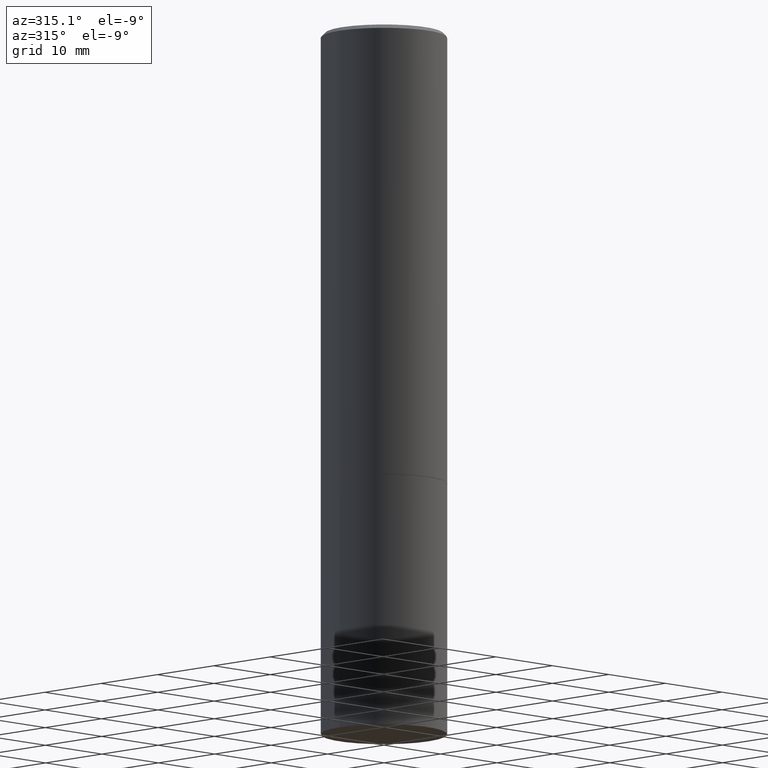
[diagram: clean part render]
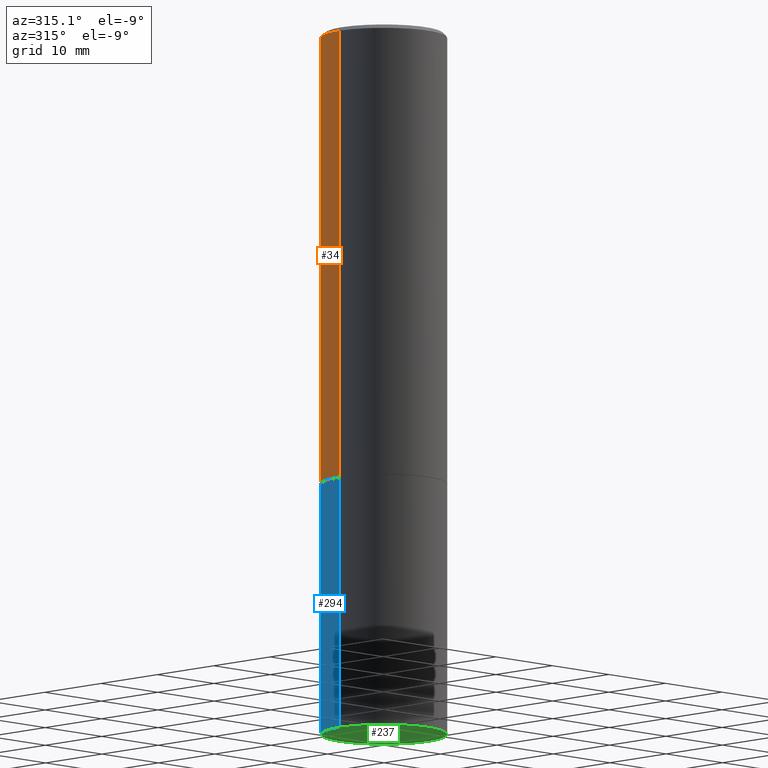
[diagram: same view with three faces highlighted in distinct colors, each labeled with its STEP entity id]
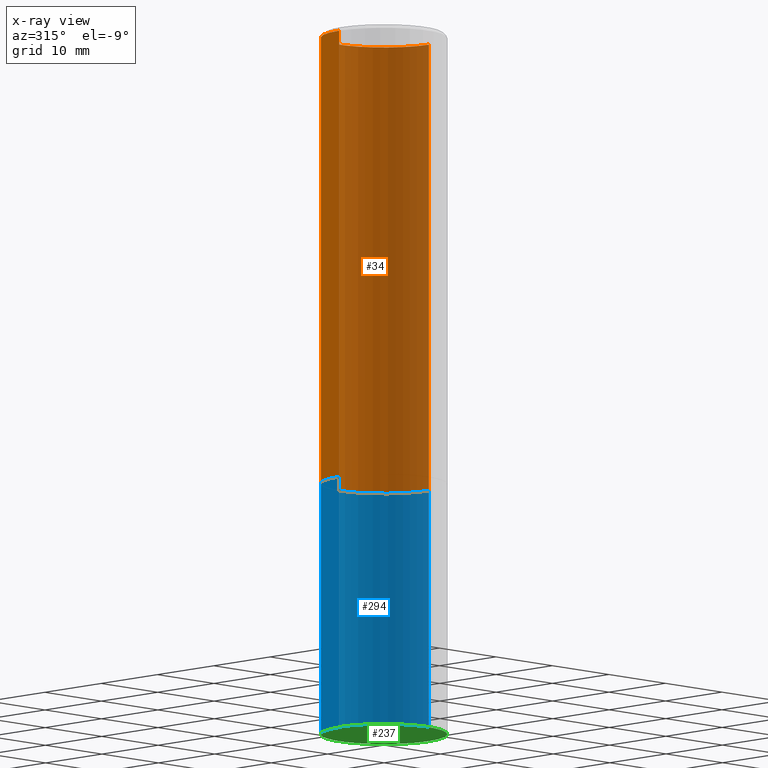
[diagram: x-ray of the same camera — body ghosted, the three highlighted faces saturated]
A machine part, auxiliary view with three faces highlighted in distinct colors.
The next image is the same camera in x-ray (body ghosted, the three faces saturated) — at least one of them is partly hidden behind the body in this view.
Their STEP definitions:

[orange] entity #34 — the highlighted cylindrical surface (partial cylindrical patch) has radius 7.9375 mm, axis along (-0, 0, 1).
#8 = EDGE_CURVE ( 'NONE', #302, #254, #138, .T. ) ;
#12 = ORIENTED_EDGE ( 'NONE', *, *, #36, .T. ) ;
#27 = EDGE_CURVE ( 'NONE', #254, #223, #178, .T. ) ;
#34 = ADVANCED_FACE ( 'NONE', ( #306 ), #339, .T. ) ;
#36 = EDGE_CURVE ( 'NONE', #286, #223, #86, .T. ) ;
#44 = ORIENTED_EDGE ( 'NONE', *, *, #274, .T. ) ;
#78 = CARTESIAN_POINT ( 'NONE',  ( -0.3125000000000000000, -1.740639529667233725E-15, -2.248999999999999666 ) ) ;
#86 = LINE ( 'NONE', #361, #300 ) ;
#88 = CARTESIAN_POINT ( 'NONE',  ( 0.3124999999999998890, -2.182175836776957558E-15, 1.523805242436229235E-29 ) ) ;
#110 = DIRECTION ( 'NONE',  ( 1.000000000000000000, -6.982962677686266711E-15, 4.876176775795935232E-29 ) ) ;
#112 = CARTESIAN_POINT ( 'NONE',  ( 0.3125000000000000000, -1.003451736783519063E-14, -2.248999999999999666 ) ) ;
#123 = CARTESIAN_POINT ( 'NONE',  ( 5.499859345110371740E-29, -7.852341531058233864E-15, -2.248999999999999666 ) ) ;
#138 = LINE ( 'NONE', #88, #252 ) ;
#165 = CARTESIAN_POINT ( 'NONE',  ( 4.890937612370292426E-31, -6.982962677686317493E-17, -0.02000000000000007674 ) ) ;
#171 = DIRECTION ( 'NONE',  ( -2.445468806185136877E-29, 3.491481338843145188E-15, 1.000000000000000000 ) ) ;
#175 = CIRCLE ( 'NONE', #309, 0.3125000000000000000 ) ;
#178 = CIRCLE ( 'NONE', #232, 0.3124999999999997224 ) ;
#183 = AXIS2_PLACEMENT_3D ( 'NONE', #364, #357, #110 ) ;
#188 = EDGE_LOOP ( 'NONE', ( #44, #12, #276, #349 ) ) ;
#197 = DIRECTION ( 'NONE',  ( 1.000000000000000000, -6.982962677686266711E-15, 0.000000000000000000 ) ) ;
#223 = VERTEX_POINT ( 'NONE', #270 ) ;
#232 = AXIS2_PLACEMENT_3D ( 'NONE', #165, #310, #197 ) ;
#243 = DIRECTION ( 'NONE',  ( -2.445468806185136597E-29, 3.491481338843145583E-15, 1.000000000000000000 ) ) ;
#252 = VECTOR ( 'NONE', #281, 39.37007874015748143 ) ;
#254 = VERTEX_POINT ( 'NONE', #343 ) ;
#270 = CARTESIAN_POINT ( 'NONE',  ( -0.3124999999999997224, 2.112346210000093471E-15, -0.02000000000000007674 ) ) ;
#273 = DIRECTION ( 'NONE',  ( 1.000000000000000000, -6.982962677686265133E-15, 0.000000000000000000 ) ) ;
#274 = EDGE_CURVE ( 'NONE', #302, #286, #175, .T. ) ;
#276 = ORIENTED_EDGE ( 'NONE', *, *, #27, .F. ) ;
#281 = DIRECTION ( 'NONE',  ( -2.445468806185136877E-29, 3.491481338843145188E-15, 1.000000000000000000 ) ) ;
#286 = VERTEX_POINT ( 'NONE', #78 ) ;
#300 = VECTOR ( 'NONE', #171, 39.37007874015748143 ) ;
#302 = VERTEX_POINT ( 'NONE', #112 ) ;
#306 = FACE_OUTER_BOUND ( 'NONE', #188, .T. ) ;
#309 = AXIS2_PLACEMENT_3D ( 'NONE', #123, #243, #273 ) ;
#310 = DIRECTION ( 'NONE',  ( -2.445468806185136597E-29, 3.491481338843145583E-15, 1.000000000000000000 ) ) ;
#339 = CYLINDRICAL_SURFACE ( 'NONE', #183, 0.3124999999999998890 ) ;
#343 = CARTESIAN_POINT ( 'NONE',  ( 0.3124999999999997224, -2.213735251080464939E-15, -0.02000000000000007674 ) ) ;
#349 = ORIENTED_EDGE ( 'NONE', *, *, #8, .F. ) ;
#357 = DIRECTION ( 'NONE',  ( -2.445468806185136597E-29, 3.491481338843145583E-15, 1.000000000000000000 ) ) ;
#361 = CARTESIAN_POINT ( 'NONE',  ( -0.3124999999999998890, 2.220446049250312292E-15, -1.537167215704657391E-29 ) ) ;
#364 = CARTESIAN_POINT ( 'NONE',  ( 0.000000000000000000, 0.000000000000000000, 0.000000000000000000 ) ) ;

[blue] entity #294 — the highlighted cylindrical surface (partial cylindrical patch) has radius 7.9375 mm, axis along (-0, 0, 1).
#7 = LINE ( 'NONE', #247, #264 ) ;
#17 = CIRCLE ( 'NONE', #48, 0.3125000000000000000 ) ;
#41 = EDGE_CURVE ( 'NONE', #191, #205, #17, .T. ) ;
#45 = ORIENTED_EDGE ( 'NONE', *, *, #97, .T. ) ;
#48 = AXIS2_PLACEMENT_3D ( 'NONE', #140, #146, #332 ) ;
#49 = DIRECTION ( 'NONE',  ( 1.000000000000000000, -6.982962677686266711E-15, 4.876176775795936353E-29 ) ) ;
#53 = FACE_OUTER_BOUND ( 'NONE', #132, .T. ) ;
#54 = DIRECTION ( 'NONE',  ( -2.445468806185136597E-29, 3.491481338843145583E-15, 1.000000000000000000 ) ) ;
#66 = CARTESIAN_POINT ( 'NONE',  ( 0.3125000000000000000, -1.003800884917403522E-14, -2.249999999999999556 ) ) ;
#69 = EDGE_CURVE ( 'NONE', #71, #205, #200, .T. ) ;
#71 = VERTEX_POINT ( 'NONE', #114 ) ;
#72 = VERTEX_POINT ( 'NONE', #313 ) ;
#81 = DIRECTION ( 'NONE',  ( -2.445468806185136597E-29, 3.491481338843145583E-15, 1.000000000000000000 ) ) ;
#97 = EDGE_CURVE ( 'NONE', #72, #71, #345, .T. ) ;
#99 = AXIS2_PLACEMENT_3D ( 'NONE', #142, #54, #135 ) ;
#114 = CARTESIAN_POINT ( 'NONE',  ( -0.3125000000000000000, -7.817562799923730025E-15, -3.500000000000000000 ) ) ;
#117 = ORIENTED_EDGE ( 'NONE', *, *, #69, .T. ) ;
#128 = ORIENTED_EDGE ( 'NONE', *, *, #41, .F. ) ;
#130 = AXIS2_PLACEMENT_3D ( 'NONE', #358, #81, #49 ) ;
#132 = EDGE_LOOP ( 'NONE', ( #45, #117, #128, #251 ) ) ;
#135 = DIRECTION ( 'NONE',  ( 1.000000000000000000, -6.982962677686269077E-15, 0.000000000000000000 ) ) ;
#140 = CARTESIAN_POINT ( 'NONE',  ( 5.502304813916556222E-29, -7.855833012397076871E-15, -2.249999999999999556 ) ) ;
#142 = CARTESIAN_POINT ( 'NONE',  ( 8.559140821647976968E-29, -1.222018468595100934E-14, -3.500000000000000000 ) ) ;
#146 = DIRECTION ( 'NONE',  ( -2.445468806185136597E-29, 3.491481338843145583E-15, 1.000000000000000000 ) ) ;
#148 = CARTESIAN_POINT ( 'NONE',  ( -0.3125000000000000000, -7.817562799923730025E-15, -2.249999999999999556 ) ) ;
#191 = VERTEX_POINT ( 'NONE', #66 ) ;
#200 = LINE ( 'NONE', #261, #219 ) ;
#205 = VERTEX_POINT ( 'NONE', #148 ) ;
#219 = VECTOR ( 'NONE', #359, 39.37007874015748143 ) ;
#226 = EDGE_CURVE ( 'NONE', #72, #191, #7, .T. ) ;
#240 = DIRECTION ( 'NONE',  ( -2.445468806185136877E-29, 3.491481338843145188E-15, 1.000000000000000000 ) ) ;
#247 = CARTESIAN_POINT ( 'NONE',  ( 0.3125000000000000000, -2.182175836776958347E-15, 1.523805242436230075E-29 ) ) ;
#251 = ORIENTED_EDGE ( 'NONE', *, *, #226, .F. ) ;
#261 = CARTESIAN_POINT ( 'NONE',  ( -0.3125000000000000000, 2.220446049250313081E-15, -1.537167215704658232E-29 ) ) ;
#264 = VECTOR ( 'NONE', #240, 39.37007874015748143 ) ;
#294 = ADVANCED_FACE ( 'NONE', ( #53 ), #356, .T. ) ;
#313 = CARTESIAN_POINT ( 'NONE',  ( 0.3125000000000000000, -1.440236052272796769E-14, -3.500000000000000000 ) ) ;
#332 = DIRECTION ( 'NONE',  ( 1.000000000000000000, -6.982962677686269077E-15, 0.000000000000000000 ) ) ;
#345 = CIRCLE ( 'NONE', #99, 0.3125000000000000000 ) ;
#356 = CYLINDRICAL_SURFACE ( 'NONE', #130, 0.3125000000000000000 ) ;
#358 = CARTESIAN_POINT ( 'NONE',  ( 0.000000000000000000, 0.000000000000000000, 0.000000000000000000 ) ) ;
#359 = DIRECTION ( 'NONE',  ( -2.445468806185136877E-29, 3.491481338843145188E-15, 1.000000000000000000 ) ) ;

[green] entity #237 — the highlighted planar face has unit normal (0, -0, -1).
#2 = DIRECTION ( 'NONE',  ( -1.000000000000000000, 6.982962677686265922E-15, -4.876176775795935793E-29 ) ) ;
#3 = DIRECTION ( 'NONE',  ( 2.438088387897960049E-29, -3.491481338843145188E-15, -1.000000000000000000 ) ) ;
#14 = ORIENTED_EDGE ( 'NONE', *, *, #39, .F. ) ;
#16 = DIRECTION ( 'NONE',  ( 1.000000000000000000, -6.982962677686269077E-15, 0.000000000000000000 ) ) ;
#18 = EDGE_LOOP ( 'NONE', ( #190, #14 ) ) ;
#20 = DIRECTION ( 'NONE',  ( -2.445468806185136597E-29, 3.491481338843145583E-15, 1.000000000000000000 ) ) ;
#39 = EDGE_CURVE ( 'NONE', #71, #72, #327, .T. ) ;
#54 = DIRECTION ( 'NONE',  ( -2.445468806185136597E-29, 3.491481338843145583E-15, 1.000000000000000000 ) ) ;
#71 = VERTEX_POINT ( 'NONE', #114 ) ;
#72 = VERTEX_POINT ( 'NONE', #313 ) ;
#96 = FACE_OUTER_BOUND ( 'NONE', #18, .T. ) ;
#97 = EDGE_CURVE ( 'NONE', #72, #71, #345, .T. ) ;
#99 = AXIS2_PLACEMENT_3D ( 'NONE', #142, #54, #135 ) ;
#114 = CARTESIAN_POINT ( 'NONE',  ( -0.3125000000000000000, -7.817562799923730025E-15, -3.500000000000000000 ) ) ;
#135 = DIRECTION ( 'NONE',  ( 1.000000000000000000, -6.982962677686269077E-15, 0.000000000000000000 ) ) ;
#136 = AXIS2_PLACEMENT_3D ( 'NONE', #173, #20, #16 ) ;
#142 = CARTESIAN_POINT ( 'NONE',  ( 8.559140821647976968E-29, -1.222018468595100934E-14, -3.500000000000000000 ) ) ;
#161 = AXIS2_PLACEMENT_3D ( 'NONE', #296, #3, #2 ) ;
#173 = CARTESIAN_POINT ( 'NONE',  ( 8.559140821647976968E-29, -1.222018468595100934E-14, -3.500000000000000000 ) ) ;
#177 = PLANE ( 'NONE',  #161 ) ;
#190 = ORIENTED_EDGE ( 'NONE', *, *, #97, .F. ) ;
#237 = ADVANCED_FACE ( 'NONE', ( #96 ), #177, .T. ) ;
#296 = CARTESIAN_POINT ( 'NONE',  ( 2.182175836777043938E-15, 0.3124999999999877875, -3.500000000000000888 ) ) ;
#313 = CARTESIAN_POINT ( 'NONE',  ( 0.3125000000000000000, -1.440236052272796769E-14, -3.500000000000000000 ) ) ;
#327 = CIRCLE ( 'NONE', #136, 0.3125000000000000000 ) ;
#345 = CIRCLE ( 'NONE', #99, 0.3125000000000000000 ) ;